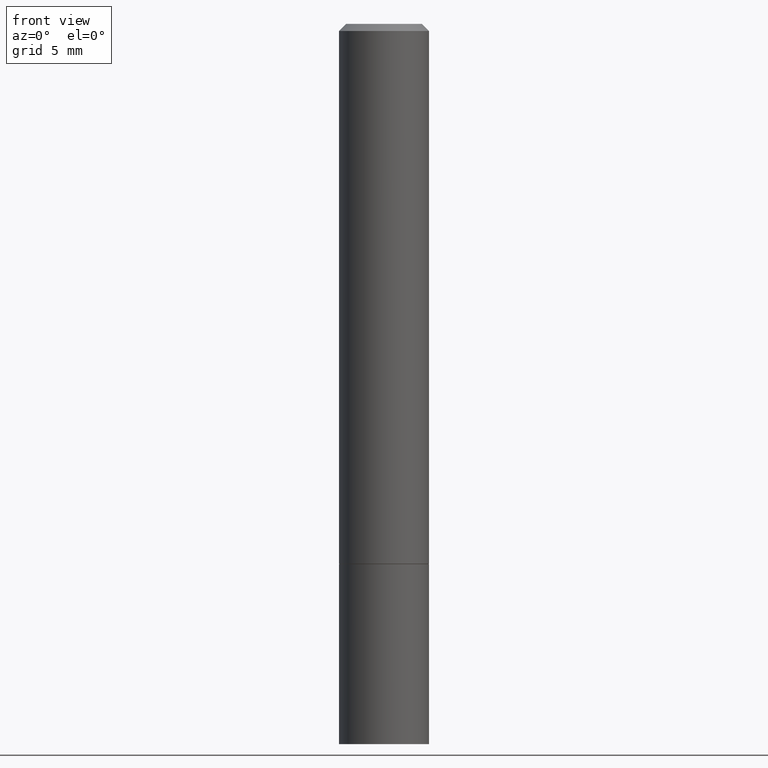
[diagram: clean part render]
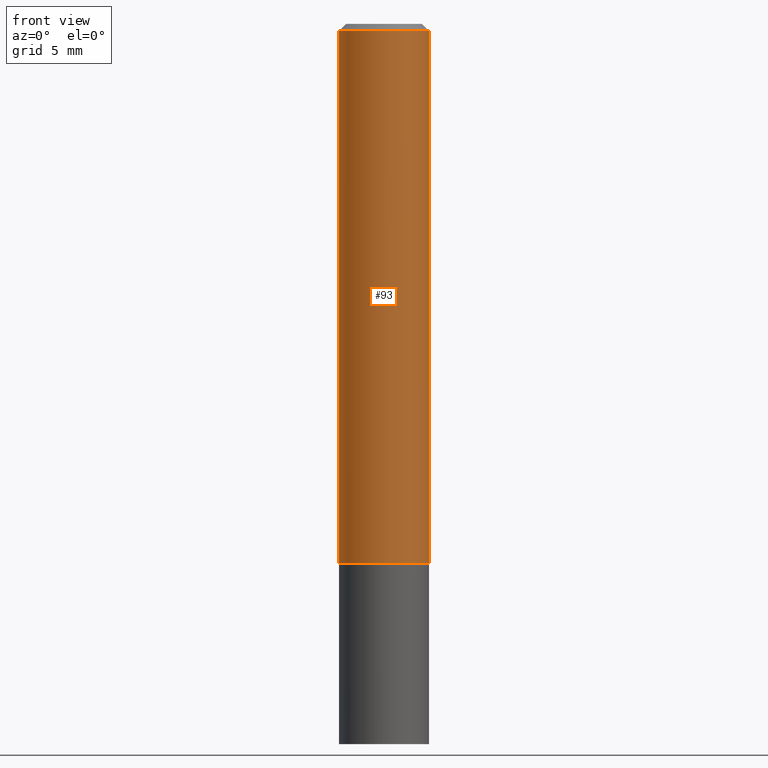
[diagram: same view with one face highlighted and labeled with its STEP entity id]
A machine part, front view. The second image highlights one B-rep face of the part: STEP entity #93.
In plain terms, the highlighted cylindrical surface (partial cylindrical patch) has radius 3.175 mm, axis along (-0, 0, 1).
Its self-contained STEP definition (entity closure, byte-faithful):
#1 = DIRECTION ( 'NONE',  ( 1.000000000000000000, -6.982962677686270655E-15, 0.000000000000000000 ) ) ;
#5 = CARTESIAN_POINT ( 'NONE',  ( 3.665757740471518732E-29, -5.233730526925875170E-15, -1.498999999999999666 ) ) ;
#12 = DIRECTION ( 'NONE',  ( -2.445468806185136877E-29, 3.491481338843145188E-15, 1.000000000000000000 ) ) ;
#23 = CARTESIAN_POINT ( 'NONE',  ( 0.000000000000000000, 0.000000000000000000, 0.000000000000000000 ) ) ;
#36 = CARTESIAN_POINT ( 'NONE',  ( -0.1250000000000000000, -1.763601657151241635E-15, -1.498999999999999666 ) ) ;
#48 = CYLINDRICAL_SURFACE ( 'NONE', #352, 0.1249999999999999167 ) ;
#55 = CARTESIAN_POINT ( 'NONE',  ( 0.1249999999999998335, -9.273918764983031658E-16, -0.02000000000000002470 ) ) ;
#82 = VERTEX_POINT ( 'NONE', #191 ) ;
#85 = LINE ( 'NONE', #110, #360 ) ;
#90 = CARTESIAN_POINT ( 'NONE',  ( -0.1249999999999998335, 8.030407079339191532E-16, -0.02000000000000002470 ) ) ;
#93 = ADVANCED_FACE ( 'NONE', ( #308 ), #48, .T. ) ;
#104 = EDGE_CURVE ( 'NONE', #235, #139, #105, .T. ) ;
#105 = CIRCLE ( 'NONE', #184, 0.1249999999999998335 ) ;
#106 = CARTESIAN_POINT ( 'NONE',  ( -0.1249999999999999167, 8.881784197001246407E-16, -6.148668862818628023E-30 ) ) ;
#110 = CARTESIAN_POINT ( 'NONE',  ( 0.1249999999999999167, -8.728703347107827472E-16, 6.095220969744915537E-30 ) ) ;
#119 = ORIENTED_EDGE ( 'NONE', *, *, #270, .F. ) ;
#132 = CIRCLE ( 'NONE', #185, 0.1250000000000000000 ) ;
#133 = DIRECTION ( 'NONE',  ( -2.445468806185136597E-29, 3.491481338843145583E-15, 1.000000000000000000 ) ) ;
#139 = VERTEX_POINT ( 'NONE', #55 ) ;
#143 = ORIENTED_EDGE ( 'NONE', *, *, #221, .T. ) ;
#150 = ORIENTED_EDGE ( 'NONE', *, *, #104, .F. ) ;
#170 = ORIENTED_EDGE ( 'NONE', *, *, #278, .T. ) ;
#183 = VERTEX_POINT ( 'NONE', #36 ) ;
#184 = AXIS2_PLACEMENT_3D ( 'NONE', #268, #209, #261 ) ;
#185 = AXIS2_PLACEMENT_3D ( 'NONE', #5, #321, #1 ) ;
#191 = CARTESIAN_POINT ( 'NONE',  ( 0.1250000000000000000, -6.106600861636658508E-15, -1.498999999999999666 ) ) ;
#209 = DIRECTION ( 'NONE',  ( -2.445468806185136597E-29, 3.491481338843145583E-15, 1.000000000000000000 ) ) ;
#221 = EDGE_CURVE ( 'NONE', #183, #82, #132, .T. ) ;
#235 = VERTEX_POINT ( 'NONE', #90 ) ;
#246 = DIRECTION ( 'NONE',  ( 1.000000000000000000, -6.982962677686266711E-15, 4.876176775795935793E-29 ) ) ;
#261 = DIRECTION ( 'NONE',  ( 1.000000000000000000, -6.982962677686266711E-15, 0.000000000000000000 ) ) ;
#268 = CARTESIAN_POINT ( 'NONE',  ( 4.890937612370279289E-31, -6.982962677686299005E-17, -0.02000000000000002470 ) ) ;
#270 = EDGE_CURVE ( 'NONE', #183, #235, #340, .T. ) ;
#278 = EDGE_CURVE ( 'NONE', #82, #139, #85, .T. ) ;
#290 = DIRECTION ( 'NONE',  ( -2.445468806185136877E-29, 3.491481338843145188E-15, 1.000000000000000000 ) ) ;
#308 = FACE_OUTER_BOUND ( 'NONE', #341, .T. ) ;
#321 = DIRECTION ( 'NONE',  ( -2.445468806185136597E-29, 3.491481338843145583E-15, 1.000000000000000000 ) ) ;
#340 = LINE ( 'NONE', #106, #353 ) ;
#341 = EDGE_LOOP ( 'NONE', ( #119, #143, #170, #150 ) ) ;
#352 = AXIS2_PLACEMENT_3D ( 'NONE', #23, #133, #246 ) ;
#353 = VECTOR ( 'NONE', #12, 39.37007874015748143 ) ;
#360 = VECTOR ( 'NONE', #290, 39.37007874015748143 ) ;